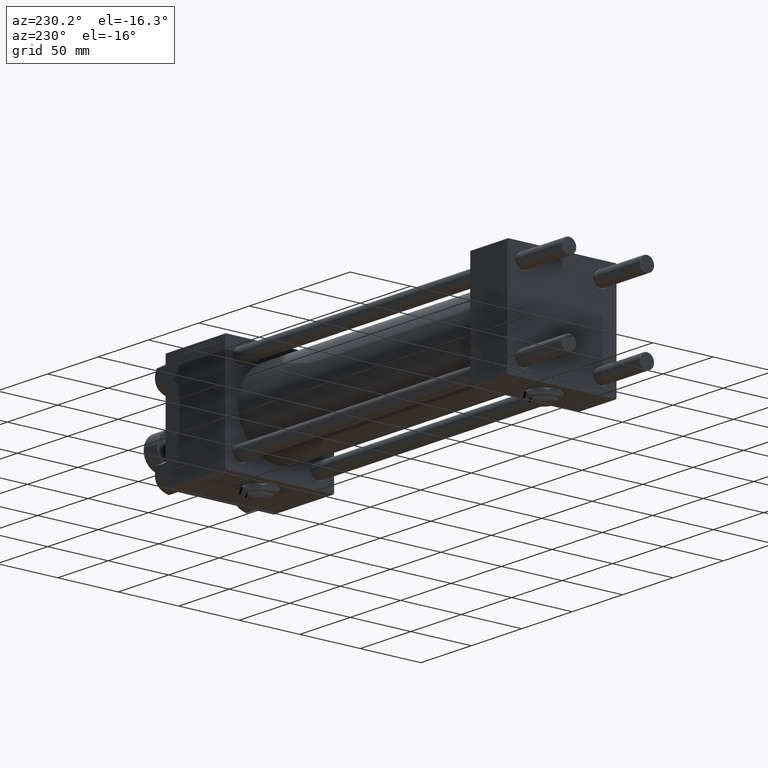
[diagram: clean part render]
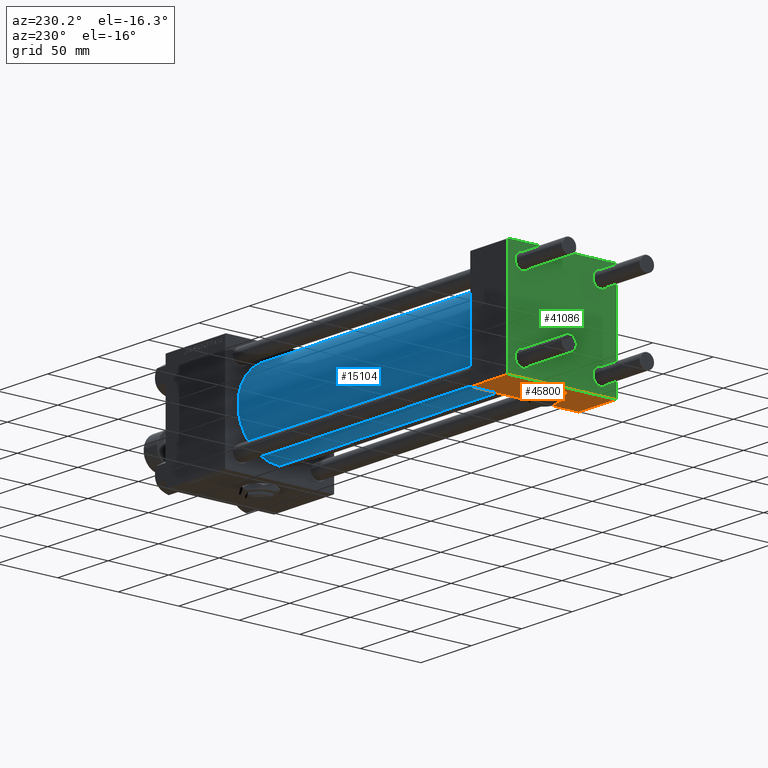
[diagram: same view with three faces highlighted in distinct colors, each labeled with its STEP entity id]
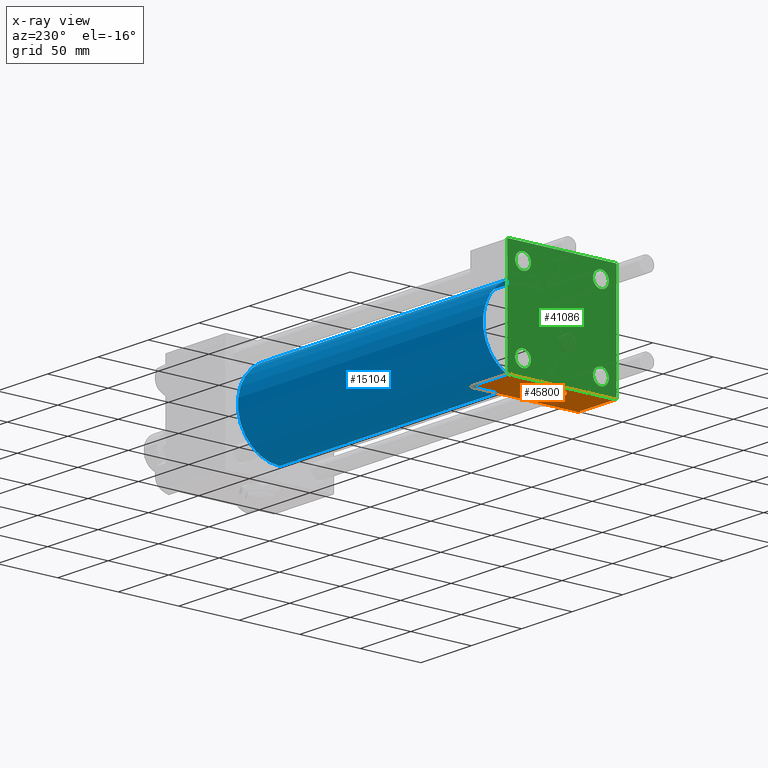
[diagram: x-ray of the same camera — body ghosted, the three highlighted faces saturated]
A machine part, auxiliary view with three faces highlighted in distinct colors.
The next image is the same camera in x-ray (body ghosted, the three faces saturated) — at least one of them is partly hidden behind the body in this view.
Their STEP definitions:

[orange] entity #45800 — the highlighted planar face has unit normal (0, 0, -1).
#824 = FACE_BOUND ( 'NONE', #30417, .T. ) ;
#2381 = EDGE_CURVE ( 'NONE', #50683, #37843, #5641, .T. ) ;
#2449 = DIRECTION ( 'NONE',  ( 1.000000000000000000, 0.000000000000000000, 0.000000000000000000 ) ) ;
#2884 = LINE ( 'NONE', #3154, #16088 ) ;
#3154 = CARTESIAN_POINT ( 'NONE',  ( 37.00000000000000000, 44.99999999999998579, -44.99999999999998579 ) ) ;
#4273 = CARTESIAN_POINT ( 'NONE',  ( 37.00000000000000000, 44.99999999999998579, -44.99999999999998579 ) ) ;
#4639 = EDGE_CURVE ( 'NONE', #29068, #20106, #2884, .T. ) ;
#4880 = CIRCLE ( 'NONE', #19259, 15.00000000000000000 ) ;
#5641 = LINE ( 'NONE', #45848, #49829 ) ;
#8902 = ORIENTED_EDGE ( 'NONE', *, *, #24529, .T. ) ;
#10378 = LINE ( 'NONE', #38685, #31877 ) ;
#11945 = DIRECTION ( 'NONE',  ( 0.000000000000000000, 1.541976423090495880E-16, -1.000000000000000000 ) ) ;
#12722 = FACE_OUTER_BOUND ( 'NONE', #28468, .T. ) ;
#13945 = AXIS2_PLACEMENT_3D ( 'NONE', #38928, #34951, #18292 ) ;
#14048 = ORIENTED_EDGE ( 'NONE', *, *, #30813, .F. ) ;
#14725 = CARTESIAN_POINT ( 'NONE',  ( 37.00000000000000000, -44.49999999999995737, -45.00000000000000000 ) ) ;
#16088 = VECTOR ( 'NONE', #27980, 1000.000000000000000 ) ;
#17009 = ORIENTED_EDGE ( 'NONE', *, *, #24645, .F. ) ;
#18292 = DIRECTION ( 'NONE',  ( 0.000000000000000000, 1.000000000000000000, 0.000000000000000000 ) ) ;
#19259 = AXIS2_PLACEMENT_3D ( 'NONE', #26762, #21767, #50081 ) ;
#20010 = VERTEX_POINT ( 'NONE', #44924 ) ;
#20106 = VERTEX_POINT ( 'NONE', #14725 ) ;
#20218 = CARTESIAN_POINT ( 'NONE',  ( 0.000000000000000000, 44.49999999999998579, -44.99999999999998579 ) ) ;
#20388 = DIRECTION ( 'NONE',  ( 0.000000000000000000, 1.000000000000000000, 1.541976423090495880E-16 ) ) ;
#21621 = CARTESIAN_POINT ( 'NONE',  ( 37.00000000000000000, 44.49999999999998579, -44.99999999999998579 ) ) ;
#21767 = DIRECTION ( 'NONE',  ( 0.000000000000000000, -1.734723475976806848E-16, -1.000000000000000000 ) ) ;
#23227 = VECTOR ( 'NONE', #23634, 1000.000000000000000 ) ;
#23634 = DIRECTION ( 'NONE',  ( -1.000000000000000000, 0.000000000000000000, 0.000000000000000000 ) ) ;
#24157 = CARTESIAN_POINT ( 'NONE',  ( 18.50000000000000355, -14.99999999999999467, -44.99999999999999289 ) ) ;
#24529 = EDGE_CURVE ( 'NONE', #20106, #37843, #40033, .T. ) ;
#24645 = EDGE_CURVE ( 'NONE', #20010, #42424, #26610, .T. ) ;
#26610 = CIRCLE ( 'NONE', #13945, 15.00000000000000000 ) ;
#26762 = CARTESIAN_POINT ( 'NONE',  ( 18.50000000000000000, 5.469317744930408178E-15, -44.99999999999999289 ) ) ;
#27980 = DIRECTION ( 'NONE',  ( 0.000000000000000000, -1.000000000000000000, -1.541976423090495633E-16 ) ) ;
#28468 = EDGE_LOOP ( 'NONE', ( #34577, #41035, #30297, #8902 ) ) ;
#29068 = VERTEX_POINT ( 'NONE', #21621 ) ;
#29122 = AXIS2_PLACEMENT_3D ( 'NONE', #4273, #11945, #20388 ) ;
#29967 = EDGE_CURVE ( 'NONE', #50683, #29068, #10378, .T. ) ;
#30297 = ORIENTED_EDGE ( 'NONE', *, *, #4639, .T. ) ;
#30417 = EDGE_LOOP ( 'NONE', ( #17009, #14048 ) ) ;
#30813 = EDGE_CURVE ( 'NONE', #42424, #20010, #4880, .T. ) ;
#31877 = VECTOR ( 'NONE', #2449, 1000.000000000000000 ) ;
#33347 = PLANE ( 'NONE',  #29122 ) ;
#34577 = ORIENTED_EDGE ( 'NONE', *, *, #2381, .F. ) ;
#34951 = DIRECTION ( 'NONE',  ( 0.000000000000000000, -1.734723475976806848E-16, -1.000000000000000000 ) ) ;
#37843 = VERTEX_POINT ( 'NONE', #42951 ) ;
#38685 = CARTESIAN_POINT ( 'NONE',  ( 37.00000000000000000, 44.49999999999998579, -44.99999999999998579 ) ) ;
#38928 = CARTESIAN_POINT ( 'NONE',  ( 18.50000000000000000, 5.469317744930408178E-15, -44.99999999999999289 ) ) ;
#39514 = CARTESIAN_POINT ( 'NONE',  ( 0.000000000000000000, -44.49999999999998579, -45.00000000000000000 ) ) ;
#40033 = LINE ( 'NONE', #39514, #23227 ) ;
#41035 = ORIENTED_EDGE ( 'NONE', *, *, #29967, .T. ) ;
#42424 = VERTEX_POINT ( 'NONE', #24157 ) ;
#42951 = CARTESIAN_POINT ( 'NONE',  ( 0.000000000000000000, -44.49999999999995737, -45.00000000000000000 ) ) ;
#44924 = CARTESIAN_POINT ( 'NONE',  ( 18.50000000000000000, 15.00000000000000533, -44.99999999999999289 ) ) ;
#45800 = ADVANCED_FACE ( 'NONE', ( #824, #12722 ), #33347, .T. ) ;
#45848 = CARTESIAN_POINT ( 'NONE',  ( 0.000000000000000000, 44.99999999999998579, -44.99999999999998579 ) ) ;
#49829 = VECTOR ( 'NONE', #50345, 1000.000000000000000 ) ;
#50081 = DIRECTION ( 'NONE',  ( 0.000000000000000000, 1.000000000000000000, 0.000000000000000000 ) ) ;
#50345 = DIRECTION ( 'NONE',  ( 0.000000000000000000, -1.000000000000000000, -1.541976423090495633E-16 ) ) ;
#50683 = VERTEX_POINT ( 'NONE', #20218 ) ;

[blue] entity #15104 — the highlighted cylindrical surface (partial cylindrical patch) has radius 34.5 mm, axis along (-1, -0, -0).
#362 = LINE ( 'NONE', #7778, #34333 ) ;
#1091 = CIRCLE ( 'NONE', #7851, 34.49999999999999289 ) ;
#2152 = VECTOR ( 'NONE', #25989, 1000.000000000000000 ) ;
#2972 = DIRECTION ( 'NONE',  ( 0.000000000000000000, 0.000000000000000000, 1.000000000000000000 ) ) ;
#3657 = AXIS2_PLACEMENT_3D ( 'NONE', #3962, #40966, #20080 ) ;
#3962 = CARTESIAN_POINT ( 'NONE',  ( 279.9999999999999432, 0.000000000000000000, 0.000000000000000000 ) ) ;
#3996 = CARTESIAN_POINT ( 'NONE',  ( 279.9999999999999432, 4.225031457058367344E-15, -34.49999999999999289 ) ) ;
#6880 = VERTEX_POINT ( 'NONE', #13607 ) ;
#7300 = VERTEX_POINT ( 'NONE', #3996 ) ;
#7778 = CARTESIAN_POINT ( 'NONE',  ( 279.9999999999999432, 4.225031457058367344E-15, -34.49999999999999289 ) ) ;
#7851 = AXIS2_PLACEMENT_3D ( 'NONE', #39740, #11950, #24117 ) ;
#9223 = CYLINDRICAL_SURFACE ( 'NONE', #3657, 34.49999999999999289 ) ;
#10253 = CARTESIAN_POINT ( 'NONE',  ( 37.00000000000000711, 0.000000000000000000, 34.49999999999999289 ) ) ;
#10345 = ORIENTED_EDGE ( 'NONE', *, *, #27854, .T. ) ;
#11950 = DIRECTION ( 'NONE',  ( 1.000000000000000000, 0.000000000000000000, 0.000000000000000000 ) ) ;
#12865 = VERTEX_POINT ( 'NONE', #46762 ) ;
#13222 = CIRCLE ( 'NONE', #17442, 34.49999999999999289 ) ;
#13607 = CARTESIAN_POINT ( 'NONE',  ( 37.00000000000000711, 4.225031457058367344E-15, -34.49999999999999289 ) ) ;
#15104 = ADVANCED_FACE ( 'NONE', ( #49425 ), #9223, .T. ) ;
#16759 = LINE ( 'NONE', #37135, #2152 ) ;
#17442 = AXIS2_PLACEMENT_3D ( 'NONE', #22543, #51382, #2972 ) ;
#20080 = DIRECTION ( 'NONE',  ( 0.000000000000000000, 0.000000000000000000, 1.000000000000000000 ) ) ;
#22543 = CARTESIAN_POINT ( 'NONE',  ( 37.00000000000000711, 0.000000000000000000, 0.000000000000000000 ) ) ;
#23729 = ORIENTED_EDGE ( 'NONE', *, *, #26853, .T. ) ;
#24117 = DIRECTION ( 'NONE',  ( 0.000000000000000000, 0.000000000000000000, -1.000000000000000000 ) ) ;
#25989 = DIRECTION ( 'NONE',  ( -1.000000000000000000, -0.000000000000000000, -0.000000000000000000 ) ) ;
#26758 = ORIENTED_EDGE ( 'NONE', *, *, #41802, .F. ) ;
#26853 = EDGE_CURVE ( 'NONE', #7300, #6880, #362, .T. ) ;
#27854 = EDGE_CURVE ( 'NONE', #6880, #46283, #13222, .T. ) ;
#32621 = DIRECTION ( 'NONE',  ( -1.000000000000000000, -0.000000000000000000, -0.000000000000000000 ) ) ;
#34333 = VECTOR ( 'NONE', #32621, 1000.000000000000000 ) ;
#35047 = EDGE_LOOP ( 'NONE', ( #26758, #23729, #10345, #49280 ) ) ;
#37135 = CARTESIAN_POINT ( 'NONE',  ( 279.9999999999999432, 0.000000000000000000, 34.49999999999999289 ) ) ;
#39740 = CARTESIAN_POINT ( 'NONE',  ( 279.9999999999999432, 0.000000000000000000, 0.000000000000000000 ) ) ;
#40966 = DIRECTION ( 'NONE',  ( -1.000000000000000000, -0.000000000000000000, -0.000000000000000000 ) ) ;
#41802 = EDGE_CURVE ( 'NONE', #7300, #12865, #1091, .T. ) ;
#46283 = VERTEX_POINT ( 'NONE', #10253 ) ;
#46762 = CARTESIAN_POINT ( 'NONE',  ( 279.9999999999999432, 0.000000000000000000, 34.49999999999999289 ) ) ;
#46945 = EDGE_CURVE ( 'NONE', #12865, #46283, #16759, .T. ) ;
#49280 = ORIENTED_EDGE ( 'NONE', *, *, #46945, .F. ) ;
#49425 = FACE_OUTER_BOUND ( 'NONE', #35047, .T. ) ;
#51382 = DIRECTION ( 'NONE',  ( 1.000000000000000000, -0.000000000000000000, 0.000000000000000000 ) ) ;

[green] entity #41086 — the highlighted planar face has unit normal (-1, 0, 0).
#123 = EDGE_LOOP ( 'NONE', ( #3447, #11100 ) ) ;
#256 = CIRCLE ( 'NONE', #37432, 6.499999999999977796 ) ;
#464 = CARTESIAN_POINT ( 'NONE',  ( 0.000000000000000000, 32.14999999999999147, 25.65000000000002700 ) ) ;
#873 = LINE ( 'NONE', #41343, #31665 ) ;
#883 = DIRECTION ( 'NONE',  ( 0.000000000000000000, 7.709882115452476934E-17, -1.000000000000000000 ) ) ;
#1259 = CARTESIAN_POINT ( 'NONE',  ( 0.000000000000000000, -32.14999999999997726, -25.65000000000003411 ) ) ;
#1535 = DIRECTION ( 'NONE',  ( 0.000000000000000000, 0.000000000000000000, 1.000000000000000000 ) ) ;
#1671 = CARTESIAN_POINT ( 'NONE',  ( 0.000000000000000000, -32.14999999999997726, 32.15000000000001279 ) ) ;
#1823 = DIRECTION ( 'NONE',  ( 0.000000000000000000, 0.000000000000000000, -1.000000000000000000 ) ) ;
#1965 = AXIS2_PLACEMENT_3D ( 'NONE', #8516, #19901, #8269 ) ;
#2381 = EDGE_CURVE ( 'NONE', #50683, #37843, #5641, .T. ) ;
#2870 = LINE ( 'NONE', #39372, #35878 ) ;
#3447 = ORIENTED_EDGE ( 'NONE', *, *, #12171, .T. ) ;
#3839 = VERTEX_POINT ( 'NONE', #44841 ) ;
#3966 = ORIENTED_EDGE ( 'NONE', *, *, #15610, .T. ) ;
#4234 = DIRECTION ( 'NONE',  ( 1.000000000000000000, -0.000000000000000000, 0.000000000000000000 ) ) ;
#4311 = VERTEX_POINT ( 'NONE', #15890 ) ;
#4564 = CARTESIAN_POINT ( 'NONE',  ( 0.000000000000000000, -32.14999999999997726, -38.64999999999999147 ) ) ;
#4578 = DIRECTION ( 'NONE',  ( 0.000000000000000000, -0.7071067811865474617, 0.7071067811865474617 ) ) ;
#4810 = FACE_BOUND ( 'NONE', #21261, .T. ) ;
#5183 = EDGE_LOOP ( 'NONE', ( #39348, #21855, #38334, #37020, #9875, #37133, #42540, #22717 ) ) ;
#5641 = LINE ( 'NONE', #45848, #49829 ) ;
#6155 = DIRECTION ( 'NONE',  ( 1.000000000000000000, -0.000000000000000000, 0.000000000000000000 ) ) ;
#6272 = DIRECTION ( 'NONE',  ( 0.000000000000000000, 0.000000000000000000, 1.000000000000000000 ) ) ;
#6433 = CARTESIAN_POINT ( 'NONE',  ( 0.000000000000000000, -32.14999999999997726, -32.15000000000001279 ) ) ;
#7210 = AXIS2_PLACEMENT_3D ( 'NONE', #51378, #6155, #22538 ) ;
#8071 = VERTEX_POINT ( 'NONE', #42641 ) ;
#8269 = DIRECTION ( 'NONE',  ( -0.000000000000000000, 0.000000000000000000, 1.000000000000000000 ) ) ;
#8283 = AXIS2_PLACEMENT_3D ( 'NONE', #6433, #22029, #17793 ) ;
#8516 = CARTESIAN_POINT ( 'NONE',  ( 0.000000000000000000, 0.000000000000000000, 0.000000000000000000 ) ) ;
#8856 = CIRCLE ( 'NONE', #7210, 6.499999999999977796 ) ;
#9875 = ORIENTED_EDGE ( 'NONE', *, *, #45601, .F. ) ;
#10017 = AXIS2_PLACEMENT_3D ( 'NONE', #36187, #44136, #23762 ) ;
#10020 = CIRCLE ( 'NONE', #51407, 6.499999999999977796 ) ;
#10230 = CARTESIAN_POINT ( 'NONE',  ( 0.000000000000000000, 32.14999999999999147, 32.15000000000000568 ) ) ;
#11100 = ORIENTED_EDGE ( 'NONE', *, *, #32241, .T. ) ;
#11733 = CARTESIAN_POINT ( 'NONE',  ( 0.000000000000000000, 32.14999999999999147, 38.64999999999999147 ) ) ;
#12171 = EDGE_CURVE ( 'NONE', #24118, #3839, #8856, .T. ) ;
#13085 = CIRCLE ( 'NONE', #36724, 6.499999999999977796 ) ;
#14084 = DIRECTION ( 'NONE',  ( 1.000000000000000000, -0.000000000000000000, 0.000000000000000000 ) ) ;
#14201 = DIRECTION ( 'NONE',  ( 1.000000000000000000, -0.000000000000000000, 0.000000000000000000 ) ) ;
#14235 = EDGE_CURVE ( 'NONE', #18543, #16005, #22609, .T. ) ;
#14825 = DIRECTION ( 'NONE',  ( 1.000000000000000000, -0.000000000000000000, 0.000000000000000000 ) ) ;
#15038 = DIRECTION ( 'NONE',  ( 0.000000000000000000, 0.7071067811865474617, -0.7071067811865474617 ) ) ;
#15610 = EDGE_CURVE ( 'NONE', #35467, #42302, #256, .T. ) ;
#15890 = CARTESIAN_POINT ( 'NONE',  ( 0.000000000000000000, -45.00000000000000000, -44.49999999999995737 ) ) ;
#16005 = VERTEX_POINT ( 'NONE', #48020 ) ;
#16307 = EDGE_LOOP ( 'NONE', ( #32532, #22744 ) ) ;
#16452 = FACE_OUTER_BOUND ( 'NONE', #5183, .T. ) ;
#17590 = VECTOR ( 'NONE', #26402, 1000.000000000000000 ) ;
#17793 = DIRECTION ( 'NONE',  ( 0.000000000000000000, 0.000000000000000000, 1.000000000000000000 ) ) ;
#17911 = CARTESIAN_POINT ( 'NONE',  ( 0.000000000000000000, 44.99999999999998579, 44.50000000000001421 ) ) ;
#18073 = LINE ( 'NONE', #50364, #28017 ) ;
#18543 = VERTEX_POINT ( 'NONE', #45539 ) ;
#19287 = ORIENTED_EDGE ( 'NONE', *, *, #45380, .T. ) ;
#19901 = DIRECTION ( 'NONE',  ( -1.000000000000000000, 0.000000000000000000, -0.000000000000000000 ) ) ;
#20218 = CARTESIAN_POINT ( 'NONE',  ( 0.000000000000000000, 44.49999999999998579, -44.99999999999998579 ) ) ;
#20415 = FACE_BOUND ( 'NONE', #16307, .T. ) ;
#20682 = EDGE_CURVE ( 'NONE', #44757, #21244, #37618, .T. ) ;
#21244 = VERTEX_POINT ( 'NONE', #32432 ) ;
#21261 = EDGE_LOOP ( 'NONE', ( #38917, #3966 ) ) ;
#21855 = ORIENTED_EDGE ( 'NONE', *, *, #40723, .T. ) ;
#21891 = ORIENTED_EDGE ( 'NONE', *, *, #25455, .T. ) ;
#21905 = EDGE_LOOP ( 'NONE', ( #19287, #21891 ) ) ;
#22029 = DIRECTION ( 'NONE',  ( 1.000000000000000000, -0.000000000000000000, 0.000000000000000000 ) ) ;
#22084 = DIRECTION ( 'NONE',  ( -0.000000000000000000, 0.7071067811865425767, 0.7071067811865524577 ) ) ;
#22538 = DIRECTION ( 'NONE',  ( 0.000000000000000000, 0.000000000000000000, 1.000000000000000000 ) ) ;
#22609 = LINE ( 'NONE', #39008, #42465 ) ;
#22717 = ORIENTED_EDGE ( 'NONE', *, *, #22915, .T. ) ;
#22744 = ORIENTED_EDGE ( 'NONE', *, *, #35751, .T. ) ;
#22915 = EDGE_CURVE ( 'NONE', #46070, #45265, #2870, .T. ) ;
#23261 = CARTESIAN_POINT ( 'NONE',  ( 0.000000000000000000, 44.49999999999998579, 45.00000000000001421 ) ) ;
#23762 = DIRECTION ( 'NONE',  ( 0.000000000000000000, 0.000000000000000000, 1.000000000000000000 ) ) ;
#24118 = VERTEX_POINT ( 'NONE', #48815 ) ;
#24235 = LINE ( 'NONE', #40374, #51953 ) ;
#25455 = EDGE_CURVE ( 'NONE', #41420, #42354, #41850, .T. ) ;
#26320 = VECTOR ( 'NONE', #1823, 1000.000000000000000 ) ;
#26402 = DIRECTION ( 'NONE',  ( 0.000000000000000000, -1.000000000000000000, -1.541976423090495387E-16 ) ) ;
#28017 = VECTOR ( 'NONE', #33951, 1000.000000000000114 ) ;
#28857 = FACE_BOUND ( 'NONE', #123, .T. ) ;
#29691 = DIRECTION ( 'NONE',  ( 0.000000000000000000, 0.000000000000000000, 1.000000000000000000 ) ) ;
#30733 = EDGE_CURVE ( 'NONE', #42302, #35467, #31082, .T. ) ;
#31082 = CIRCLE ( 'NONE', #8283, 6.499999999999977796 ) ;
#31665 = VECTOR ( 'NONE', #4578, 1000.000000000000114 ) ;
#32241 = EDGE_CURVE ( 'NONE', #3839, #24118, #10020, .T. ) ;
#32432 = CARTESIAN_POINT ( 'NONE',  ( 0.000000000000000000, -32.14999999999997726, 25.64999999999999147 ) ) ;
#32532 = ORIENTED_EDGE ( 'NONE', *, *, #20682, .T. ) ;
#33042 = CARTESIAN_POINT ( 'NONE',  ( 0.000000000000000000, 32.14999999999999147, -32.15000000000000568 ) ) ;
#33388 = LINE ( 'NONE', #49528, #17590 ) ;
#33951 = DIRECTION ( 'NONE',  ( -0.000000000000000000, -0.7071067811865474617, -0.7071067811865474617 ) ) ;
#35467 = VERTEX_POINT ( 'NONE', #4564 ) ;
#35519 = EDGE_CURVE ( 'NONE', #46070, #16005, #33388, .T. ) ;
#35751 = EDGE_CURVE ( 'NONE', #21244, #44757, #38753, .T. ) ;
#35878 = VECTOR ( 'NONE', #15038, 1000.000000000000114 ) ;
#36187 = CARTESIAN_POINT ( 'NONE',  ( 0.000000000000000000, -32.14999999999997726, 32.15000000000001279 ) ) ;
#36724 = AXIS2_PLACEMENT_3D ( 'NONE', #37766, #41735, #1535 ) ;
#37020 = ORIENTED_EDGE ( 'NONE', *, *, #49490, .T. ) ;
#37133 = ORIENTED_EDGE ( 'NONE', *, *, #14235, .T. ) ;
#37432 = AXIS2_PLACEMENT_3D ( 'NONE', #42091, #14825, #50815 ) ;
#37618 = CIRCLE ( 'NONE', #46920, 6.500000000000019540 ) ;
#37626 = CARTESIAN_POINT ( 'NONE',  ( 0.000000000000000000, -32.14999999999997726, 38.65000000000003411 ) ) ;
#37766 = CARTESIAN_POINT ( 'NONE',  ( 0.000000000000000000, 32.14999999999999147, 32.15000000000000568 ) ) ;
#37843 = VERTEX_POINT ( 'NONE', #42951 ) ;
#38334 = ORIENTED_EDGE ( 'NONE', *, *, #2381, .T. ) ;
#38753 = CIRCLE ( 'NONE', #10017, 6.500000000000019540 ) ;
#38917 = ORIENTED_EDGE ( 'NONE', *, *, #30733, .T. ) ;
#39008 = CARTESIAN_POINT ( 'NONE',  ( -0.000000000000000000, -44.75000000000029843, 44.74999999999967315 ) ) ;
#39348 = ORIENTED_EDGE ( 'NONE', *, *, #40118, .T. ) ;
#39372 = CARTESIAN_POINT ( 'NONE',  ( 0.000000000000000000, 44.74999999999999289, 44.74999999999999289 ) ) ;
#40118 = EDGE_CURVE ( 'NONE', #45265, #8071, #42810, .T. ) ;
#40374 = CARTESIAN_POINT ( 'NONE',  ( 0.000000000000000000, -45.00000000000000711, 45.00000000000000000 ) ) ;
#40723 = EDGE_CURVE ( 'NONE', #8071, #50683, #18073, .T. ) ;
#40981 = DIRECTION ( 'NONE',  ( 0.000000000000000000, 0.000000000000000000, 1.000000000000000000 ) ) ;
#41086 = ADVANCED_FACE ( 'NONE', ( #20415, #4810, #28857, #47957, #16452 ), #44511, .T. ) ;
#41343 = CARTESIAN_POINT ( 'NONE',  ( 0.000000000000000000, -44.74999999999998579, -44.74999999999998579 ) ) ;
#41420 = VERTEX_POINT ( 'NONE', #464 ) ;
#41735 = DIRECTION ( 'NONE',  ( 1.000000000000000000, -0.000000000000000000, 0.000000000000000000 ) ) ;
#41850 = CIRCLE ( 'NONE', #45253, 6.499999999999977796 ) ;
#42091 = CARTESIAN_POINT ( 'NONE',  ( 0.000000000000000000, -32.14999999999997726, -32.15000000000001279 ) ) ;
#42302 = VERTEX_POINT ( 'NONE', #1259 ) ;
#42354 = VERTEX_POINT ( 'NONE', #11733 ) ;
#42465 = VECTOR ( 'NONE', #22084, 1000.000000000000114 ) ;
#42540 = ORIENTED_EDGE ( 'NONE', *, *, #35519, .F. ) ;
#42641 = CARTESIAN_POINT ( 'NONE',  ( 0.000000000000000000, 44.99999999999998579, -44.49999999999995737 ) ) ;
#42810 = LINE ( 'NONE', #46779, #26320 ) ;
#42951 = CARTESIAN_POINT ( 'NONE',  ( 0.000000000000000000, -44.49999999999995737, -45.00000000000000000 ) ) ;
#44136 = DIRECTION ( 'NONE',  ( 1.000000000000000000, -0.000000000000000000, 0.000000000000000000 ) ) ;
#44511 = PLANE ( 'NONE',  #1965 ) ;
#44757 = VERTEX_POINT ( 'NONE', #37626 ) ;
#44841 = CARTESIAN_POINT ( 'NONE',  ( 0.000000000000000000, 32.14999999999999147, -38.64999999999998437 ) ) ;
#45253 = AXIS2_PLACEMENT_3D ( 'NONE', #10230, #14201, #6272 ) ;
#45265 = VERTEX_POINT ( 'NONE', #17911 ) ;
#45380 = EDGE_CURVE ( 'NONE', #42354, #41420, #13085, .T. ) ;
#45539 = CARTESIAN_POINT ( 'NONE',  ( 0.000000000000000000, -45.00000000000000711, 44.49999999999997158 ) ) ;
#45601 = EDGE_CURVE ( 'NONE', #18543, #4311, #24235, .T. ) ;
#45848 = CARTESIAN_POINT ( 'NONE',  ( 0.000000000000000000, 44.99999999999998579, -44.99999999999998579 ) ) ;
#46070 = VERTEX_POINT ( 'NONE', #23261 ) ;
#46779 = CARTESIAN_POINT ( 'NONE',  ( 0.000000000000000000, 44.99999999999998579, 45.00000000000001421 ) ) ;
#46920 = AXIS2_PLACEMENT_3D ( 'NONE', #1671, #14084, #29691 ) ;
#47957 = FACE_BOUND ( 'NONE', #21905, .T. ) ;
#48020 = CARTESIAN_POINT ( 'NONE',  ( 0.000000000000000000, -44.49999999999995737, 45.00000000000000000 ) ) ;
#48815 = CARTESIAN_POINT ( 'NONE',  ( 0.000000000000000000, 32.14999999999999147, -25.65000000000002700 ) ) ;
#49490 = EDGE_CURVE ( 'NONE', #37843, #4311, #873, .T. ) ;
#49528 = CARTESIAN_POINT ( 'NONE',  ( 0.000000000000000000, 44.99999999999998579, 45.00000000000001421 ) ) ;
#49829 = VECTOR ( 'NONE', #50345, 1000.000000000000000 ) ;
#50345 = DIRECTION ( 'NONE',  ( 0.000000000000000000, -1.000000000000000000, -1.541976423090495633E-16 ) ) ;
#50364 = CARTESIAN_POINT ( 'NONE',  ( 0.000000000000000000, 44.74999999999998579, -44.74999999999998579 ) ) ;
#50683 = VERTEX_POINT ( 'NONE', #20218 ) ;
#50815 = DIRECTION ( 'NONE',  ( 0.000000000000000000, 0.000000000000000000, 1.000000000000000000 ) ) ;
#51378 = CARTESIAN_POINT ( 'NONE',  ( 0.000000000000000000, 32.14999999999999147, -32.15000000000000568 ) ) ;
#51407 = AXIS2_PLACEMENT_3D ( 'NONE', #33042, #4234, #40981 ) ;
#51953 = VECTOR ( 'NONE', #883, 1000.000000000000000 ) ;